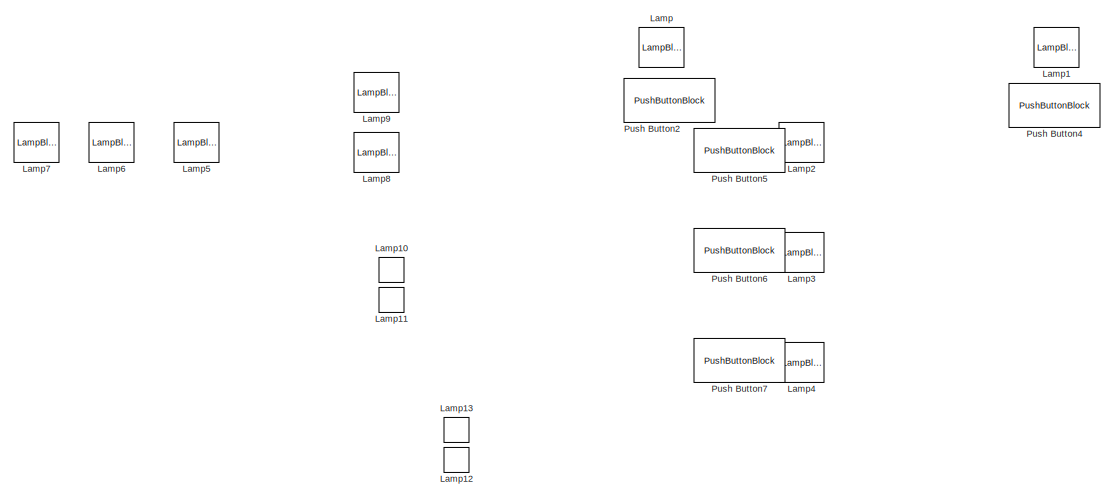
[diagram: root canvas - part 1/2, full width, top band]
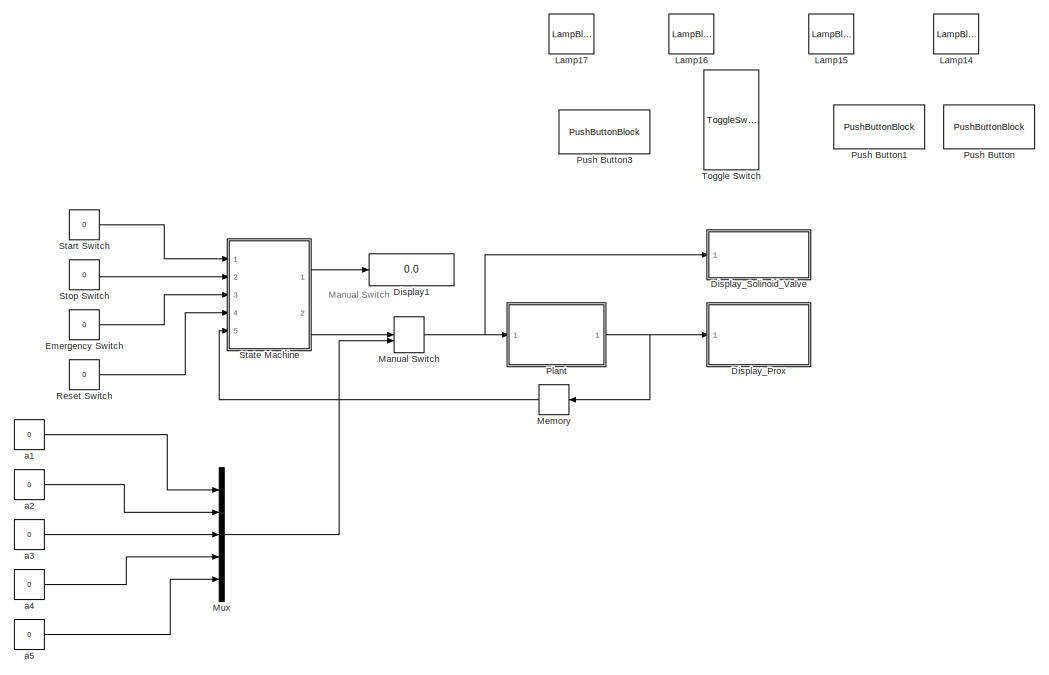
[diagram: root canvas - part 2/2, full width, bottom band]
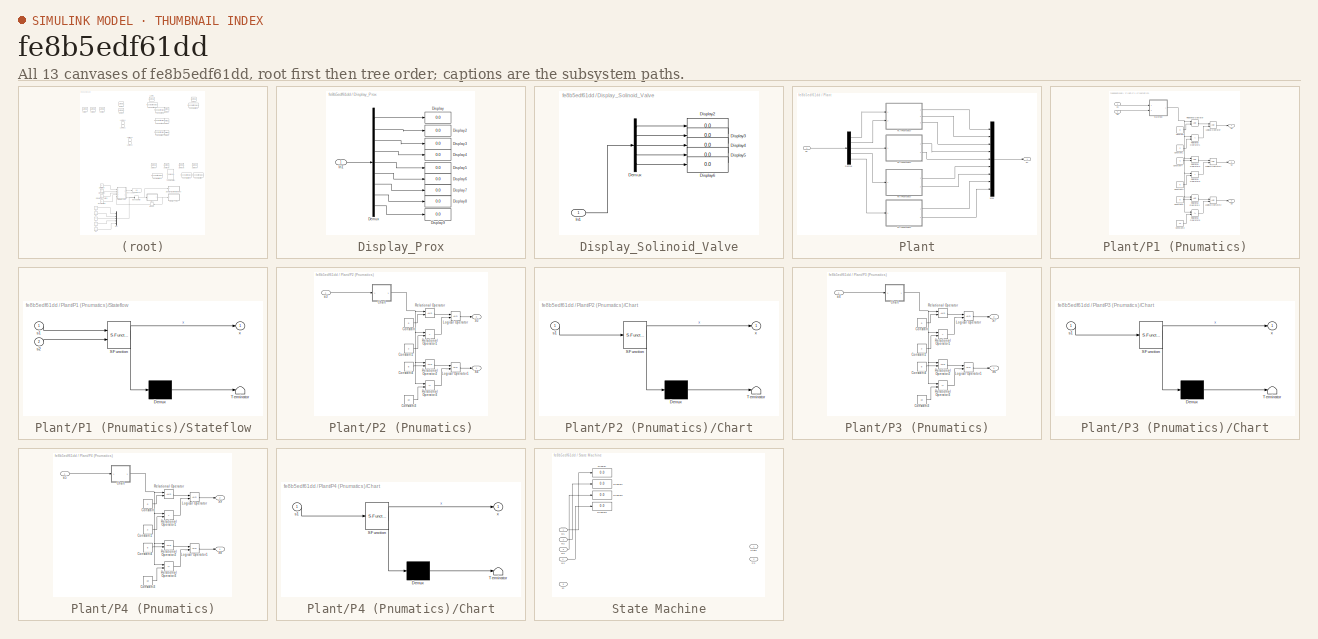
[diagram: thumbnail index - all 13 canvases of the model, root first then tree order]
MODEL slx_fe8b5edf61dd
KIND model
CONFIG AbsTol = auto
CONFIG EnableMultiTasking = off
CONFIG FixedStep = auto
CONFIG MaxStep = auto
CONFIG MinStep = auto
CONFIG RelTol = 1e-3
CONFIG SampleTimeConstraint = Unconstrained
CONFIG SolverName = VariableStepAuto
CONFIG StartTime = 0.0
CONFIG StopTime = inf
BLOCK [Display] Display1
  Decimation = 1
  Ports = [1]
BLOCK [SubSystem] Display_Prox
  Ports = [1]
  RequestExecContextInheritance = off
BLOCK [Demux] Display_Prox/Demux
  Outputs = 9
  Ports = [1, 9]
BLOCK [Display] Display_Prox/Display
  Decimation = 1
  Ports = [1]
BLOCK [Display] Display_Prox/Display2
  Decimation = 1
  Ports = [1]
BLOCK [Display] Display_Prox/Display3
  Decimation = 1
  Ports = [1]
BLOCK [Display] Display_Prox/Display4
  Decimation = 1
  Ports = [1]
BLOCK [Display] Display_Prox/Display5
  Decimation = 1
  Ports = [1]
BLOCK [Display] Display_Prox/Display6
  Decimation = 1
  Ports = [1]
BLOCK [Display] Display_Prox/Display7
  Decimation = 1
  Ports = [1]
BLOCK [Display] Display_Prox/Display8
  Decimation = 1
  Ports = [1]
BLOCK [Display] Display_Prox/Display9
  Decimation = 1
  Ports = [1]
BLOCK [Inport] Display_Prox/In1
BLOCK [SubSystem] Display_Solinoid_Valve
  Ports = [1]
  RequestExecContextInheritance = off
BLOCK [Demux] Display_Solinoid_Valve/Demux
  Outputs = 5
  Ports = [1, 5]
BLOCK [Display] Display_Solinoid_Valve/Display2
  Decimation = 1
  Ports = [1]
BLOCK [Display] Display_Solinoid_Valve/Display3
  Decimation = 1
  Ports = [1]
BLOCK [Display] Display_Solinoid_Valve/Display4
  Decimation = 1
  Ports = [1]
BLOCK [Display] Display_Solinoid_Valve/Display5
  Decimation = 1
  Ports = [1]
BLOCK [Display] Display_Solinoid_Valve/Display6
  Decimation = 1
  Ports = [1]
BLOCK [Inport] Display_Solinoid_Valve/In1
BLOCK [Constant] Emergency Switch
  OutDataTypeStr = boolean
  Value = 0
BLOCK [LampBlock] Lamp
BLOCK [LampBlock] Lamp1
BLOCK [LampBlock] Lamp10
BLOCK [LampBlock] Lamp11
BLOCK [LampBlock] Lamp12
BLOCK [LampBlock] Lamp13
BLOCK [LampBlock] Lamp14
BLOCK [LampBlock] Lamp15
BLOCK [LampBlock] Lamp16
BLOCK [LampBlock] Lamp17
BLOCK [LampBlock] Lamp2
BLOCK [LampBlock] Lamp3
BLOCK [LampBlock] Lamp4
BLOCK [LampBlock] Lamp5
BLOCK [LampBlock] Lamp6
BLOCK [LampBlock] Lamp7
BLOCK [LampBlock] Lamp8
BLOCK [LampBlock] Lamp9
BLOCK [ManualSwitch] Manual Switch
  CurrentSetting = 0
BLOCK [Memory] Memory
  NameLocation = top
BLOCK [Mux] Mux
  DisplayOption = bar
  Inputs = 5
  Ports = [5, 1]
BLOCK [SubSystem] Plant
  Ports = [1, 1]
  RequestExecContextInheritance = off
BLOCK [Demux] Plant/Demux
  Outputs = 5
  Ports = [1, 5]
BLOCK [Mux] Plant/Mux
  DisplayOption = bar
  Inputs = 9
  Ports = [9, 1]
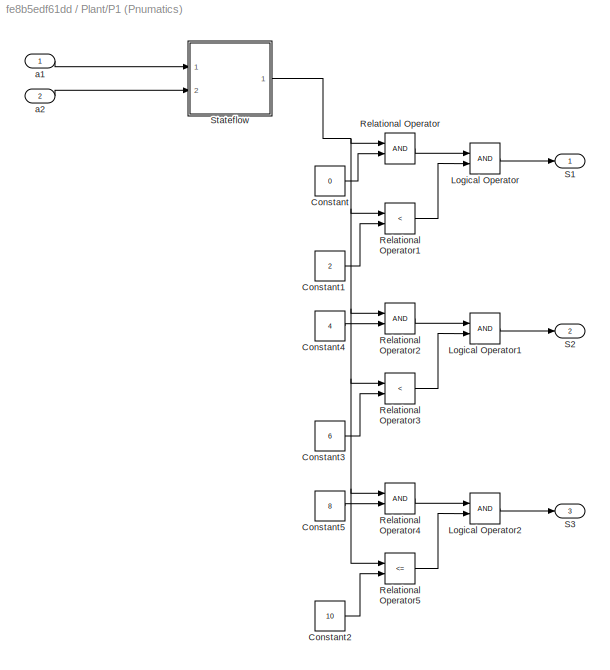
BLOCK [SubSystem] Plant/P1 (Pnumatics)
  Ports = [2, 3]
  RequestExecContextInheritance = off
BLOCK [Constant] Plant/P1 (Pnumatics)/Constant
  Value = 0
BLOCK [Constant] Plant/P1 (Pnumatics)/Constant1
  Value = 2
BLOCK [Constant] Plant/P1 (Pnumatics)/Constant2
  Value = 10
BLOCK [Constant] Plant/P1 (Pnumatics)/Constant3
  Value = 6
BLOCK [Constant] Plant/P1 (Pnumatics)/Constant4
  Value = 4
BLOCK [Constant] Plant/P1 (Pnumatics)/Constant5
  Value = 8
BLOCK [Logic] Plant/P1 (Pnumatics)/Logical Operator
  AllPortsSameDT = off
  OutDataTypeStr = boolean
  Ports = [2, 1]
BLOCK [Logic] Plant/P1 (Pnumatics)/Logical Operator1
  AllPortsSameDT = off
  OutDataTypeStr = boolean
  Ports = [2, 1]
BLOCK [Logic] Plant/P1 (Pnumatics)/Logical Operator2
  AllPortsSameDT = off
  OutDataTypeStr = boolean
  Ports = [2, 1]
BLOCK [RelationalOperator] Plant/P1 (Pnumatics)/Relational Operator
  InputSameDT = off
  OutDataTypeStr = boolean
  Ports = [2, 1]
  RndMeth = Simplest
BLOCK [RelationalOperator] Plant/P1 (Pnumatics)/Relational Operator1
  InputSameDT = off
  Operator = <
  OutDataTypeStr = boolean
  Ports = [2, 1]
  RndMeth = Simplest
BLOCK [RelationalOperator] Plant/P1 (Pnumatics)/Relational Operator2
  InputSameDT = off
  OutDataTypeStr = boolean
  Ports = [2, 1]
  RndMeth = Simplest
BLOCK [RelationalOperator] Plant/P1 (Pnumatics)/Relational Operator3
  InputSameDT = off
  Operator = <
  OutDataTypeStr = boolean
  Ports = [2, 1]
  RndMeth = Simplest
BLOCK [RelationalOperator] Plant/P1 (Pnumatics)/Relational Operator4
  InputSameDT = off
  OutDataTypeStr = boolean
  Ports = [2, 1]
  RndMeth = Simplest
BLOCK [RelationalOperator] Plant/P1 (Pnumatics)/Relational Operator5
  InputSameDT = off
  Operator = <=
  OutDataTypeStr = boolean
  Ports = [2, 1]
  RndMeth = Simplest
BLOCK [Outport] Plant/P1 (Pnumatics)/S1
BLOCK [Outport] Plant/P1 (Pnumatics)/S2
  Port = 2
BLOCK [Outport] Plant/P1 (Pnumatics)/S3
  Port = 3
BLOCK [SubSystem] Plant/P1 (Pnumatics)/Stateflow
  AncestorBlock = RoboticsPlayground/Utilities and Hardware/Stateflow
  ErrorFcn = Stateflow.Translate.translate
  PermitHierarchicalResolution = ExplicitOnly
  Ports = [2, 1]
  RequestExecContextInheritance = off
  SFBlockType = Chart
  TreatAsAtomicUnit = on
BLOCK [Demux] Plant/P1 (Pnumatics)/Stateflow/ Demux 
  Outputs = 1
  Ports = [1, 1]
BLOCK [S-Function] Plant/P1 (Pnumatics)/Stateflow/ SFunction 
  EnableBusSupport = on
  FunctionName = sf_sfun
  PortCounts = [2 2]
  Ports = [2, 2]
  SFcnIsStateOwnerBlock = off
  SFunctionDeploymentMode = off
  Tag = Stateflow S-Function 3
BLOCK [Terminator] Plant/P1 (Pnumatics)/Stateflow/ Terminator 
BLOCK [Inport] Plant/P1 (Pnumatics)/Stateflow/s1
BLOCK [Inport] Plant/P1 (Pnumatics)/Stateflow/s2
  Port = 2
BLOCK [Outport] Plant/P1 (Pnumatics)/Stateflow/x
BLOCK [Inport] Plant/P1 (Pnumatics)/a1
BLOCK [Inport] Plant/P1 (Pnumatics)/a2
  Port = 2
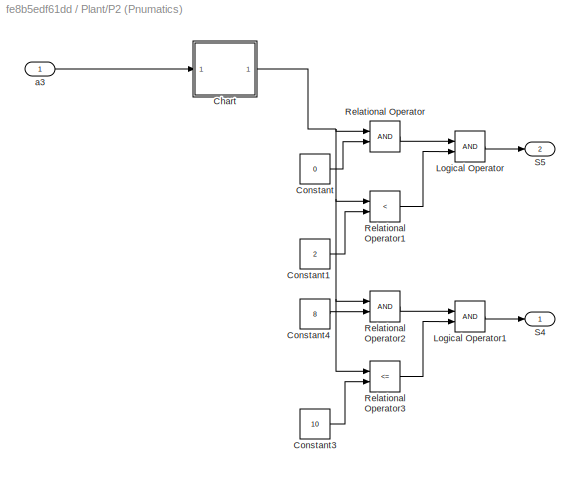
BLOCK [SubSystem] Plant/P2 (Pnumatics)
  Ports = [1, 2]
  RequestExecContextInheritance = off
BLOCK [SubSystem] Plant/P2 (Pnumatics)/Chart
  ErrorFcn = Stateflow.Translate.translate
  PermitHierarchicalResolution = ExplicitOnly
  Ports = [1, 1]
  RequestExecContextInheritance = off
  SFBlockType = Chart
  TreatAsAtomicUnit = on
BLOCK [Demux] Plant/P2 (Pnumatics)/Chart/ Demux 
  Outputs = 1
  Ports = [1, 1]
BLOCK [S-Function] Plant/P2 (Pnumatics)/Chart/ SFunction 
  EnableBusSupport = on
  FunctionName = sf_sfun
  PortCounts = [1 2]
  Ports = [1, 2]
  SFcnIsStateOwnerBlock = off
  SFunctionDeploymentMode = off
  Tag = Stateflow S-Function 1
BLOCK [Terminator] Plant/P2 (Pnumatics)/Chart/ Terminator 
BLOCK [Inport] Plant/P2 (Pnumatics)/Chart/s1
BLOCK [Outport] Plant/P2 (Pnumatics)/Chart/x
BLOCK [Constant] Plant/P2 (Pnumatics)/Constant
  Value = 0
BLOCK [Constant] Plant/P2 (Pnumatics)/Constant1
  Value = 2
BLOCK [Constant] Plant/P2 (Pnumatics)/Constant3
  Value = 10
BLOCK [Constant] Plant/P2 (Pnumatics)/Constant4
  Value = 8
BLOCK [Logic] Plant/P2 (Pnumatics)/Logical Operator
  AllPortsSameDT = off
  OutDataTypeStr = boolean
  Ports = [2, 1]
BLOCK [Logic] Plant/P2 (Pnumatics)/Logical Operator1
  AllPortsSameDT = off
  OutDataTypeStr = boolean
  Ports = [2, 1]
BLOCK [RelationalOperator] Plant/P2 (Pnumatics)/Relational Operator
  InputSameDT = off
  OutDataTypeStr = boolean
  Ports = [2, 1]
  RndMeth = Simplest
BLOCK [RelationalOperator] Plant/P2 (Pnumatics)/Relational Operator1
  InputSameDT = off
  Operator = <
  OutDataTypeStr = boolean
  Ports = [2, 1]
  RndMeth = Simplest
BLOCK [RelationalOperator] Plant/P2 (Pnumatics)/Relational Operator2
  InputSameDT = off
  OutDataTypeStr = boolean
  Ports = [2, 1]
  RndMeth = Simplest
BLOCK [RelationalOperator] Plant/P2 (Pnumatics)/Relational Operator3
  InputSameDT = off
  Operator = <=
  OutDataTypeStr = boolean
  Ports = [2, 1]
  RndMeth = Simplest
BLOCK [Outport] Plant/P2 (Pnumatics)/S4
BLOCK [Outport] Plant/P2 (Pnumatics)/S5
  Port = 2
BLOCK [Inport] Plant/P2 (Pnumatics)/a3
BLOCK [SubSystem] Plant/P3 (Pnumatics)
  Ports = [1, 2]
  RequestExecContextInheritance = off
BLOCK [SubSystem] Plant/P3 (Pnumatics)/Chart
  ErrorFcn = Stateflow.Translate.translate
  PermitHierarchicalResolution = ExplicitOnly
  Ports = [1, 1]
  RequestExecContextInheritance = off
  SFBlockType = Chart
  TreatAsAtomicUnit = on
BLOCK [Demux] Plant/P3 (Pnumatics)/Chart/ Demux 
  Outputs = 1
  Ports = [1, 1]
BLOCK [S-Function] Plant/P3 (Pnumatics)/Chart/ SFunction 
  EnableBusSupport = on
  FunctionName = sf_sfun
  PortCounts = [1 2]
  Ports = [1, 2]
  SFcnIsStateOwnerBlock = off
  SFunctionDeploymentMode = off
  Tag = Stateflow S-Function 2
BLOCK [Terminator] Plant/P3 (Pnumatics)/Chart/ Terminator 
BLOCK [Inport] Plant/P3 (Pnumatics)/Chart/s1
BLOCK [Outport] Plant/P3 (Pnumatics)/Chart/x
BLOCK [Constant] Plant/P3 (Pnumatics)/Constant
  Value = 0
BLOCK [Constant] Plant/P3 (Pnumatics)/Constant1
  Value = 2
BLOCK [Constant] Plant/P3 (Pnumatics)/Constant3
  Value = 10
BLOCK [Constant] Plant/P3 (Pnumatics)/Constant4
  Value = 8
BLOCK [Logic] Plant/P3 (Pnumatics)/Logical Operator
  AllPortsSameDT = off
  OutDataTypeStr = boolean
  Ports = [2, 1]
BLOCK [Logic] Plant/P3 (Pnumatics)/Logical Operator1
  AllPortsSameDT = off
  OutDataTypeStr = boolean
  Ports = [2, 1]
BLOCK [RelationalOperator] Plant/P3 (Pnumatics)/Relational Operator
  InputSameDT = off
  OutDataTypeStr = boolean
  Ports = [2, 1]
  RndMeth = Simplest
BLOCK [RelationalOperator] Plant/P3 (Pnumatics)/Relational Operator1
  InputSameDT = off
  Operator = <
  OutDataTypeStr = boolean
  Ports = [2, 1]
  RndMeth = Simplest
BLOCK [RelationalOperator] Plant/P3 (Pnumatics)/Relational Operator2
  InputSameDT = off
  OutDataTypeStr = boolean
  Ports = [2, 1]
  RndMeth = Simplest
BLOCK [RelationalOperator] Plant/P3 (Pnumatics)/Relational Operator3
  InputSameDT = off
  Operator = <=
  OutDataTypeStr = boolean
  Ports = [2, 1]
  RndMeth = Simplest
BLOCK [Outport] Plant/P3 (Pnumatics)/S6
BLOCK [Outport] Plant/P3 (Pnumatics)/S7
  Port = 2
BLOCK [Inport] Plant/P3 (Pnumatics)/a4
BLOCK [SubSystem] Plant/P4 (Pnumatics)
  Ports = [1, 2]
  RequestExecContextInheritance = off
BLOCK [SubSystem] Plant/P4 (Pnumatics)/Chart
  ErrorFcn = Stateflow.Translate.translate
  PermitHierarchicalResolution = ExplicitOnly
  Ports = [1, 1]
  RequestExecContextInheritance = off
  SFBlockType = Chart
  TreatAsAtomicUnit = on
BLOCK [Demux] Plant/P4 (Pnumatics)/Chart/ Demux 
  Outputs = 1
  Ports = [1, 1]
BLOCK [S-Function] Plant/P4 (Pnumatics)/Chart/ SFunction 
  EnableBusSupport = on
  FunctionName = sf_sfun
  PortCounts = [1 2]
  Ports = [1, 2]
  SFcnIsStateOwnerBlock = off
  SFunctionDeploymentMode = off
  Tag = Stateflow S-Function 4
BLOCK [Terminator] Plant/P4 (Pnumatics)/Chart/ Terminator 
BLOCK [Inport] Plant/P4 (Pnumatics)/Chart/s1
BLOCK [Outport] Plant/P4 (Pnumatics)/Chart/x
BLOCK [Constant] Plant/P4 (Pnumatics)/Constant
  Value = 0
BLOCK [Constant] Plant/P4 (Pnumatics)/Constant1
  Value = 2
BLOCK [Constant] Plant/P4 (Pnumatics)/Constant3
  Value = 10
BLOCK [Constant] Plant/P4 (Pnumatics)/Constant4
  Value = 8
BLOCK [Logic] Plant/P4 (Pnumatics)/Logical Operator
  AllPortsSameDT = off
  OutDataTypeStr = boolean
  Ports = [2, 1]
BLOCK [Logic] Plant/P4 (Pnumatics)/Logical Operator1
  AllPortsSameDT = off
  OutDataTypeStr = boolean
  Ports = [2, 1]
BLOCK [RelationalOperator] Plant/P4 (Pnumatics)/Relational Operator
  InputSameDT = off
  OutDataTypeStr = boolean
  Ports = [2, 1]
  RndMeth = Simplest
BLOCK [RelationalOperator] Plant/P4 (Pnumatics)/Relational Operator1
  InputSameDT = off
  Operator = <
  OutDataTypeStr = boolean
  Ports = [2, 1]
  RndMeth = Simplest
BLOCK [RelationalOperator] Plant/P4 (Pnumatics)/Relational Operator2
  InputSameDT = off
  OutDataTypeStr = boolean
  Ports = [2, 1]
  RndMeth = Simplest
BLOCK [RelationalOperator] Plant/P4 (Pnumatics)/Relational Operator3
  InputSameDT = off
  Operator = <=
  OutDataTypeStr = boolean
  Ports = [2, 1]
  RndMeth = Simplest
BLOCK [Outport] Plant/P4 (Pnumatics)/S8
BLOCK [Outport] Plant/P4 (Pnumatics)/S9
  Port = 2
BLOCK [Inport] Plant/P4 (Pnumatics)/a5
BLOCK [Inport] Plant/an
BLOCK [Outport] Plant/sn
BLOCK [PushButtonBlock] Push Button
  ButtonText = Start
BLOCK [PushButtonBlock] Push Button1
  ButtonText = Stop
BLOCK [PushButtonBlock] Push Button2
  ButtonText = a1
BLOCK [PushButtonBlock] Push Button3
  ButtonText = Reset
BLOCK [PushButtonBlock] Push Button4
  ButtonText = a2
BLOCK [PushButtonBlock] Push Button5
  ButtonText = a3
BLOCK [PushButtonBlock] Push Button6
  ButtonText = a4
BLOCK [PushButtonBlock] Push Button7
  ButtonText = a5
BLOCK [Constant] Reset Switch
  OutDataTypeStr = boolean
  Value = 0
BLOCK [Constant] Start Switch
  OutDataTypeStr = boolean
  Value = 0
BLOCK [SubSystem] State Machine
  Ports = [5, 2]
  RequestExecContextInheritance = off
BLOCK [Display] State Machine/Display
  Decimation = 1
  Ports = [1]
BLOCK [Display] State Machine/Display1
  Decimation = 1
  Ports = [1]
BLOCK [Display] State Machine/Display2
  Decimation = 1
  Ports = [1]
BLOCK [Display] State Machine/Display3
  Decimation = 1
  Ports = [1]
BLOCK [Outport] State Machine/Pn
  Port = 2
BLOCK [Outport] State Machine/State
BLOCK [Inport] State Machine/sn
  Port = 5
BLOCK [Inport] State Machine/w1
BLOCK [Inport] State Machine/w2
  Port = 2
BLOCK [Inport] State Machine/w3
  Port = 3
BLOCK [Inport] State Machine/w4
  Port = 4
BLOCK [Constant] Stop Switch
  OutDataTypeStr = boolean
  Value = 0
BLOCK [ToggleSwitchBlock] Toggle Switch
BLOCK [Constant] a1
  OutDataTypeStr = boolean
  Value = 0
BLOCK [Constant] a2
  OutDataTypeStr = boolean
  Value = 0
BLOCK [Constant] a3
  OutDataTypeStr = boolean
  Value = 0
BLOCK [Constant] a4
  OutDataTypeStr = boolean
  Value = 0
BLOCK [Constant] a5
  OutDataTypeStr = boolean
  Value = 0
ANNOTATION (root): Manual Switch
LINE Display_Prox/Demux:1 -> Display_Prox/Display:1
LINE Display_Prox/Demux:2 -> Display_Prox/Display2:1
LINE Display_Prox/Demux:3 -> Display_Prox/Display3:1
LINE Display_Prox/Demux:4 -> Display_Prox/Display4:1
LINE Display_Prox/Demux:5 -> Display_Prox/Display5:1
LINE Display_Prox/Demux:6 -> Display_Prox/Display6:1
LINE Display_Prox/Demux:7 -> Display_Prox/Display7:1
LINE Display_Prox/Demux:8 -> Display_Prox/Display8:1
LINE Display_Prox/Demux:9 -> Display_Prox/Display9:1
LINE Display_Prox/In1:1 -> Display_Prox/Demux:1
LINE Display_Solinoid_Valve/Demux:1 -> Display_Solinoid_Valve/Display2:1
LINE Display_Solinoid_Valve/Demux:2 -> Display_Solinoid_Valve/Display3:1
LINE Display_Solinoid_Valve/Demux:3 -> Display_Solinoid_Valve/Display4:1
LINE Display_Solinoid_Valve/Demux:4 -> Display_Solinoid_Valve/Display5:1
LINE Display_Solinoid_Valve/Demux:5 -> Display_Solinoid_Valve/Display6:1
LINE Display_Solinoid_Valve/In1:1 -> Display_Solinoid_Valve/Demux:1
LINE Emergency Switch:1 -> State Machine:3
NET Manual Switch:1 -> Display_Solinoid_Valve:1, Plant:1
LINE Memory:1 -> State Machine:5
LINE Mux:1 -> Manual Switch:2
LINE Plant/Demux:1 -> Plant/P1 (Pnumatics):1
LINE Plant/Demux:2 -> Plant/P1 (Pnumatics):2
LINE Plant/Demux:3 -> Plant/P2 (Pnumatics):1
LINE Plant/Demux:4 -> Plant/P3 (Pnumatics):1
LINE Plant/Demux:5 -> Plant/P4 (Pnumatics):1
LINE Plant/Mux:1 -> Plant/sn:1
LINE Plant/P1 (Pnumatics)/Constant1:1 -> Plant/P1 (Pnumatics)/Relational Operator1:2
LINE Plant/P1 (Pnumatics)/Constant2:1 -> Plant/P1 (Pnumatics)/Relational Operator5:2
LINE Plant/P1 (Pnumatics)/Constant3:1 -> Plant/P1 (Pnumatics)/Relational Operator3:2
LINE Plant/P1 (Pnumatics)/Constant4:1 -> Plant/P1 (Pnumatics)/Relational Operator2:2
LINE Plant/P1 (Pnumatics)/Constant5:1 -> Plant/P1 (Pnumatics)/Relational Operator4:2
LINE Plant/P1 (Pnumatics)/Constant:1 -> Plant/P1 (Pnumatics)/Relational Operator:2
LINE Plant/P1 (Pnumatics)/Logical Operator1:1 -> Plant/P1 (Pnumatics)/S2:1
LINE Plant/P1 (Pnumatics)/Logical Operator2:1 -> Plant/P1 (Pnumatics)/S3:1
LINE Plant/P1 (Pnumatics)/Logical Operator:1 -> Plant/P1 (Pnumatics)/S1:1
LINE Plant/P1 (Pnumatics)/Relational Operator1:1 -> Plant/P1 (Pnumatics)/Logical Operator:2
LINE Plant/P1 (Pnumatics)/Relational Operator2:1 -> Plant/P1 (Pnumatics)/Logical Operator1:1
LINE Plant/P1 (Pnumatics)/Relational Operator3:1 -> Plant/P1 (Pnumatics)/Logical Operator1:2
LINE Plant/P1 (Pnumatics)/Relational Operator4:1 -> Plant/P1 (Pnumatics)/Logical Operator2:1
LINE Plant/P1 (Pnumatics)/Relational Operator5:1 -> Plant/P1 (Pnumatics)/Logical Operator2:2
LINE Plant/P1 (Pnumatics)/Relational Operator:1 -> Plant/P1 (Pnumatics)/Logical Operator:1
NET Plant/P1 (Pnumatics)/Stateflow:1 -> Plant/P1 (Pnumatics)/Relational Operator1:1, Plant/P1 (Pnumatics)/Relational Operator2:1, Plant/P1 (Pnumatics)/Relational Operator3:1, Plant/P1 (Pnumatics)/Relational Operator4:1, Plant/P1 (Pnumatics)/Relational Operator5:1, Plant/P1 (Pnumatics)/Relational Operator:1
LINE Plant/P1 (Pnumatics)/a1:1 -> Plant/P1 (Pnumatics)/Stateflow:1
LINE Plant/P1 (Pnumatics)/a2:1 -> Plant/P1 (Pnumatics)/Stateflow:2
LINE Plant/P1 (Pnumatics):1 -> Plant/Mux:1
LINE Plant/P1 (Pnumatics):2 -> Plant/Mux:2
LINE Plant/P1 (Pnumatics):3 -> Plant/Mux:3
NET Plant/P2 (Pnumatics)/Chart:1 -> Plant/P2 (Pnumatics)/Relational Operator1:1, Plant/P2 (Pnumatics)/Relational Operator2:1, Plant/P2 (Pnumatics)/Relational Operator3:1, Plant/P2 (Pnumatics)/Relational Operator:1
LINE Plant/P2 (Pnumatics)/Constant1:1 -> Plant/P2 (Pnumatics)/Relational Operator1:2
LINE Plant/P2 (Pnumatics)/Constant3:1 -> Plant/P2 (Pnumatics)/Relational Operator3:2
LINE Plant/P2 (Pnumatics)/Constant4:1 -> Plant/P2 (Pnumatics)/Relational Operator2:2
LINE Plant/P2 (Pnumatics)/Constant:1 -> Plant/P2 (Pnumatics)/Relational Operator:2
LINE Plant/P2 (Pnumatics)/Logical Operator1:1 -> Plant/P2 (Pnumatics)/S4:1
LINE Plant/P2 (Pnumatics)/Logical Operator:1 -> Plant/P2 (Pnumatics)/S5:1
LINE Plant/P2 (Pnumatics)/Relational Operator1:1 -> Plant/P2 (Pnumatics)/Logical Operator:2
LINE Plant/P2 (Pnumatics)/Relational Operator2:1 -> Plant/P2 (Pnumatics)/Logical Operator1:1
LINE Plant/P2 (Pnumatics)/Relational Operator3:1 -> Plant/P2 (Pnumatics)/Logical Operator1:2
LINE Plant/P2 (Pnumatics)/Relational Operator:1 -> Plant/P2 (Pnumatics)/Logical Operator:1
LINE Plant/P2 (Pnumatics)/a3:1 -> Plant/P2 (Pnumatics)/Chart:1
LINE Plant/P2 (Pnumatics):1 -> Plant/Mux:4
LINE Plant/P2 (Pnumatics):2 -> Plant/Mux:5
NET Plant/P3 (Pnumatics)/Chart:1 -> Plant/P3 (Pnumatics)/Relational Operator1:1, Plant/P3 (Pnumatics)/Relational Operator2:1, Plant/P3 (Pnumatics)/Relational Operator3:1, Plant/P3 (Pnumatics)/Relational Operator:1
LINE Plant/P3 (Pnumatics)/Constant1:1 -> Plant/P3 (Pnumatics)/Relational Operator1:2
LINE Plant/P3 (Pnumatics)/Constant3:1 -> Plant/P3 (Pnumatics)/Relational Operator3:2
LINE Plant/P3 (Pnumatics)/Constant4:1 -> Plant/P3 (Pnumatics)/Relational Operator2:2
LINE Plant/P3 (Pnumatics)/Constant:1 -> Plant/P3 (Pnumatics)/Relational Operator:2
LINE Plant/P3 (Pnumatics)/Logical Operator1:1 -> Plant/P3 (Pnumatics)/S6:1
LINE Plant/P3 (Pnumatics)/Logical Operator:1 -> Plant/P3 (Pnumatics)/S7:1
LINE Plant/P3 (Pnumatics)/Relational Operator1:1 -> Plant/P3 (Pnumatics)/Logical Operator:2
LINE Plant/P3 (Pnumatics)/Relational Operator2:1 -> Plant/P3 (Pnumatics)/Logical Operator1:1
LINE Plant/P3 (Pnumatics)/Relational Operator3:1 -> Plant/P3 (Pnumatics)/Logical Operator1:2
LINE Plant/P3 (Pnumatics)/Relational Operator:1 -> Plant/P3 (Pnumatics)/Logical Operator:1
LINE Plant/P3 (Pnumatics)/a4:1 -> Plant/P3 (Pnumatics)/Chart:1
LINE Plant/P3 (Pnumatics):1 -> Plant/Mux:6
LINE Plant/P3 (Pnumatics):2 -> Plant/Mux:7
NET Plant/P4 (Pnumatics)/Chart:1 -> Plant/P4 (Pnumatics)/Relational Operator1:1, Plant/P4 (Pnumatics)/Relational Operator2:1, Plant/P4 (Pnumatics)/Relational Operator3:1, Plant/P4 (Pnumatics)/Relational Operator:1
LINE Plant/P4 (Pnumatics)/Constant1:1 -> Plant/P4 (Pnumatics)/Relational Operator1:2
LINE Plant/P4 (Pnumatics)/Constant3:1 -> Plant/P4 (Pnumatics)/Relational Operator3:2
LINE Plant/P4 (Pnumatics)/Constant4:1 -> Plant/P4 (Pnumatics)/Relational Operator2:2
LINE Plant/P4 (Pnumatics)/Constant:1 -> Plant/P4 (Pnumatics)/Relational Operator:2
LINE Plant/P4 (Pnumatics)/Logical Operator1:1 -> Plant/P4 (Pnumatics)/S8:1
LINE Plant/P4 (Pnumatics)/Logical Operator:1 -> Plant/P4 (Pnumatics)/S9:1
LINE Plant/P4 (Pnumatics)/Relational Operator1:1 -> Plant/P4 (Pnumatics)/Logical Operator:2
LINE Plant/P4 (Pnumatics)/Relational Operator2:1 -> Plant/P4 (Pnumatics)/Logical Operator1:1
LINE Plant/P4 (Pnumatics)/Relational Operator3:1 -> Plant/P4 (Pnumatics)/Logical Operator1:2
LINE Plant/P4 (Pnumatics)/Relational Operator:1 -> Plant/P4 (Pnumatics)/Logical Operator:1
LINE Plant/P4 (Pnumatics)/a5:1 -> Plant/P4 (Pnumatics)/Chart:1
LINE Plant/P4 (Pnumatics):1 -> Plant/Mux:8
LINE Plant/P4 (Pnumatics):2 -> Plant/Mux:9
LINE Plant/an:1 -> Plant/Demux:1
NET Plant:1 -> Display_Prox:1, Memory:1
LINE Reset Switch:1 -> State Machine:4
LINE Start Switch:1 -> State Machine:1
LINE State Machine/w1:1 -> State Machine/Display:1
LINE State Machine/w2:1 -> State Machine/Display1:1
LINE State Machine/w3:1 -> State Machine/Display2:1
LINE State Machine/w4:1 -> State Machine/Display3:1
LINE State Machine:1 -> Display1:1
LINE State Machine:2 -> Manual Switch:1
LINE Stop Switch:1 -> State Machine:2
LINE a1:1 -> Mux:1
LINE a2:1 -> Mux:2
LINE a3:1 -> Mux:3
LINE a4:1 -> Mux:4
LINE a5:1 -> Mux:5
note: NET lines group one-source signal fan-out (src -> all destinations, sorted); 1:1 wires keep LINE
CHART Plant/P2 (Pnumatics)/Chart states=3 transitions=5
  STATE_LABEL 'idel\n'
  STATE_LABEL 's1\nif x >= x_max\n    x = x_max\nelse\n    x=x + 1;\nend\n'
  STATE_LABEL 's2\nif x <= x_min\n    x = x_min\nelse\n    x=x - 1;\nend'
CHART Plant/P3 (Pnumatics)/Chart states=3 transitions=5
  STATE_LABEL 'idel\n'
  STATE_LABEL 's1\nif x >= x_max\n    x = x_max\nelse\n    x=x + 1;\nend\n'
  STATE_LABEL 's2\nif x <= x_min\n    x = x_min\nelse\n    x=x - 1;\nend'
CHART Plant/P1 (Pnumatics)/Stateflow states=3 transitions=6
  STATE_LABEL 'idel\n'
  STATE_LABEL 's1\nif x >= x_max\n    x = x_max\nelse\n    x=x + 1;\nend\n'
  STATE_LABEL 's2\nif x <= x_min\n    x = x_min\nelse\n    x=x - 1;\nend'
CHART Plant/P4 (Pnumatics)/Chart states=3 transitions=5
  STATE_LABEL 'idel\n'
  STATE_LABEL 's1\nif x >= x_max\n    x = x_max\nelse\n    x=x + 1;\nend\n'
  STATE_LABEL 's2\nif x <= x_min\n    x = x_min\nelse\n    x=x - 1;\nend'
CHART  states=0 transitions=0
CHART  states=0 transitions=0
CHART  states=0 transitions=0
CHART  states=0 transitions=0
